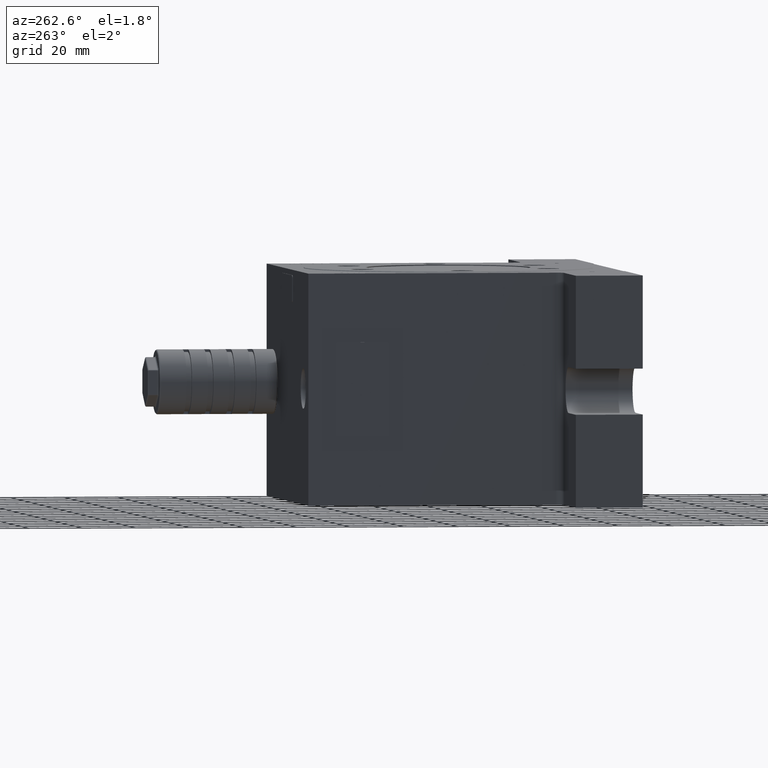
[diagram: clean part render]
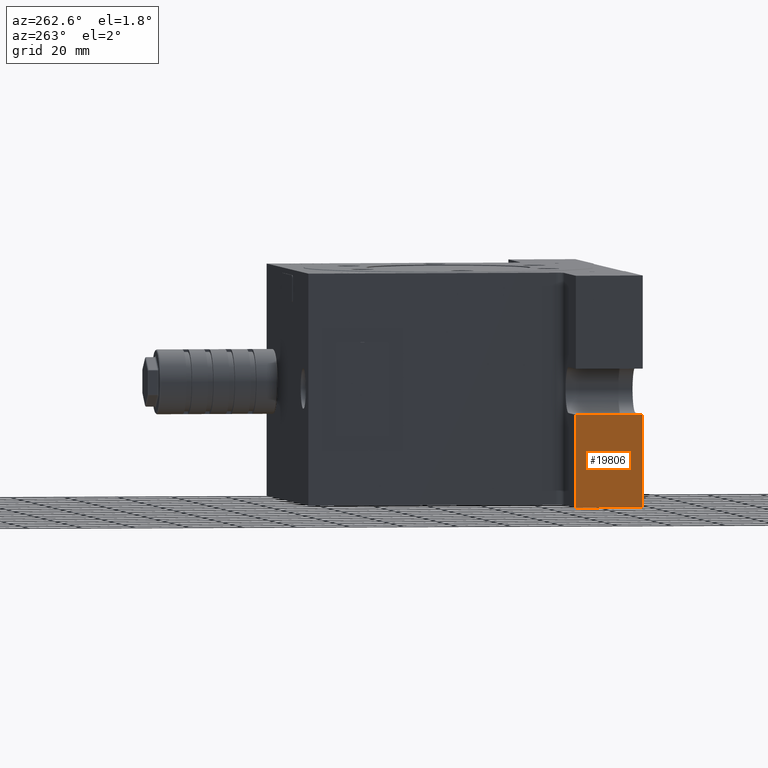
[diagram: same view with one face highlighted and labeled with its STEP entity id]
A machine part, auxiliary view. The second image highlights one B-rep face of the part: STEP entity #19806.
In plain terms, the highlighted planar face has unit normal (1, 0, 0).
Its self-contained STEP definition (entity closure, byte-faithful):
#138 = VERTEX_POINT ( 'NONE', #21716 ) ;
#1986 = DIRECTION ( 'NONE',  ( 0.0000000000000000000, 0.0000000000000000000, 1.000000000000000000 ) ) ;
#2117 = CARTESIAN_POINT ( 'NONE',  ( -97.00000000000000000, -35.00000000000000000, -8.500000000000000000 ) ) ;
#2184 = FACE_OUTER_BOUND ( 'NONE', #19064, .T. ) ;
#2607 = AXIS2_PLACEMENT_3D ( 'NONE', #4323, #14424, #17918 ) ;
#2643 = ORIENTED_EDGE ( 'NONE', *, *, #18315, .F. ) ;
#4024 = PLANE ( 'NONE',  #2607 ) ;
#4323 = CARTESIAN_POINT ( 'NONE',  ( -97.00000000000000000, -60.00000000000000000, 43.00000000000000000 ) ) ;
#6852 = VECTOR ( 'NONE', #12801, 1000.000000000000000 ) ;
#7702 = EDGE_CURVE ( 'NONE', #11630, #14514, #9031, .T. ) ;
#7972 = VECTOR ( 'NONE', #21312, 1000.000000000000000 ) ;
#8193 = EDGE_CURVE ( 'NONE', #12374, #138, #12965, .T. ) ;
#8458 = VECTOR ( 'NONE', #11632, 1000.000000000000000 ) ;
#9031 = LINE ( 'NONE', #11388, #7972 ) ;
#9164 = ORIENTED_EDGE ( 'NONE', *, *, #17286, .F. ) ;
#10295 = LINE ( 'NONE', #21479, #6852 ) ;
#10535 = CARTESIAN_POINT ( 'NONE',  ( -97.00000000000000000, -35.00000000000000000, -43.00000000000000000 ) ) ;
#11361 = CARTESIAN_POINT ( 'NONE',  ( -97.00000000000000000, -60.00000000000000000, -8.500000000000000000 ) ) ;
#11388 = CARTESIAN_POINT ( 'NONE',  ( -97.00000000000000000, -60.00000000000000000, -8.500000000000000000 ) ) ;
#11560 = CARTESIAN_POINT ( 'NONE',  ( -97.00000000000000000, -60.00000000000000000, -43.00000000000000000 ) ) ;
#11630 = VERTEX_POINT ( 'NONE', #11361 ) ;
#11632 = DIRECTION ( 'NONE',  ( 0.0000000000000000000, -1.000000000000000000, 0.0000000000000000000 ) ) ;
#12374 = VERTEX_POINT ( 'NONE', #17374 ) ;
#12801 = DIRECTION ( 'NONE',  ( 0.0000000000000000000, 0.0000000000000000000, -1.000000000000000000 ) ) ;
#12965 = LINE ( 'NONE', #11560, #8458 ) ;
#14424 = DIRECTION ( 'NONE',  ( 1.000000000000000000, 0.0000000000000000000, 0.0000000000000000000 ) ) ;
#14514 = VERTEX_POINT ( 'NONE', #2117 ) ;
#17286 = EDGE_CURVE ( 'NONE', #11630, #138, #10295, .T. ) ;
#17328 = ORIENTED_EDGE ( 'NONE', *, *, #7702, .T. ) ;
#17374 = CARTESIAN_POINT ( 'NONE',  ( -97.00000000000000000, -35.00000000000000000, -43.00000000000000000 ) ) ;
#17918 = DIRECTION ( 'NONE',  ( 0.0000000000000000000, 0.0000000000000000000, -1.000000000000000000 ) ) ;
#18315 = EDGE_CURVE ( 'NONE', #12374, #14514, #20678, .T. ) ;
#19064 = EDGE_LOOP ( 'NONE', ( #9164, #17328, #2643, #21575 ) ) ;
#19806 = ADVANCED_FACE ( 'NONE', ( #2184 ), #4024, .F. ) ;
#20678 = LINE ( 'NONE', #10535, #21956 ) ;
#21312 = DIRECTION ( 'NONE',  ( 0.0000000000000000000, 1.000000000000000000, 0.0000000000000000000 ) ) ;
#21479 = CARTESIAN_POINT ( 'NONE',  ( -97.00000000000000000, -60.00000000000000000, 43.00000000000000000 ) ) ;
#21575 = ORIENTED_EDGE ( 'NONE', *, *, #8193, .T. ) ;
#21716 = CARTESIAN_POINT ( 'NONE',  ( -97.00000000000000000, -60.00000000000000000, -43.00000000000000000 ) ) ;
#21956 = VECTOR ( 'NONE', #1986, 1000.000000000000000 ) ;